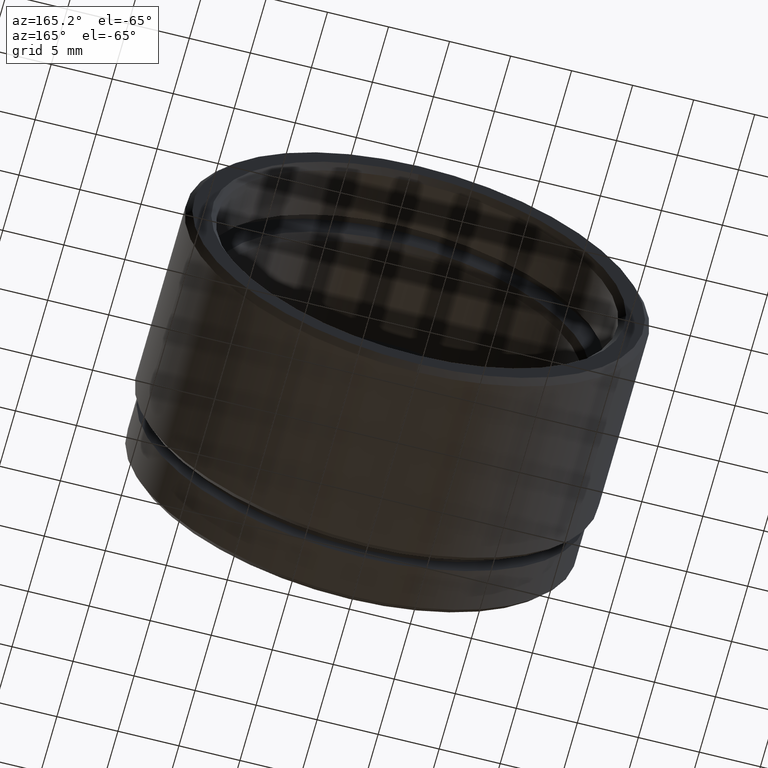
[diagram: clean part render]
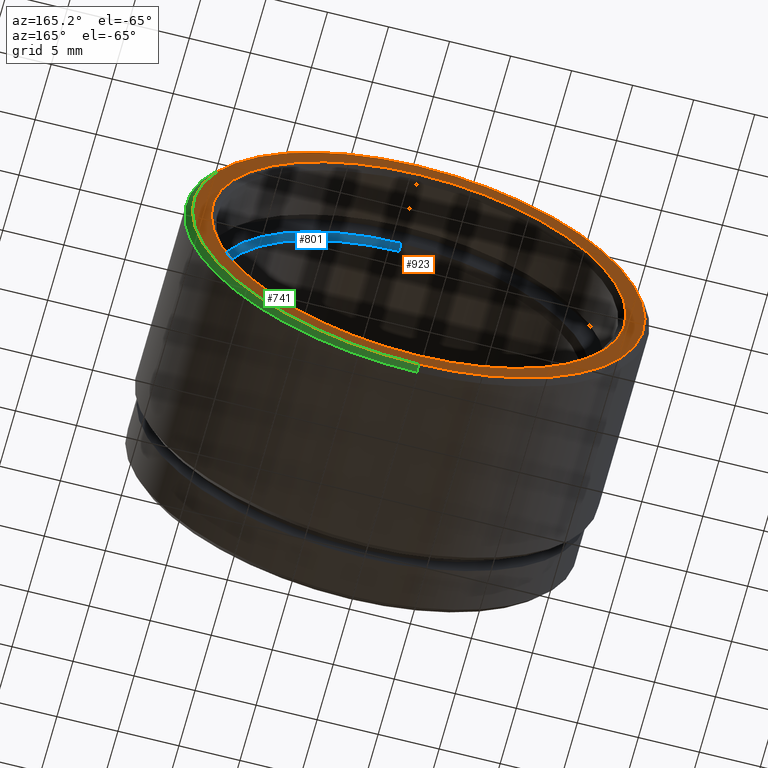
[diagram: same view with three faces highlighted in distinct colors, each labeled with its STEP entity id]
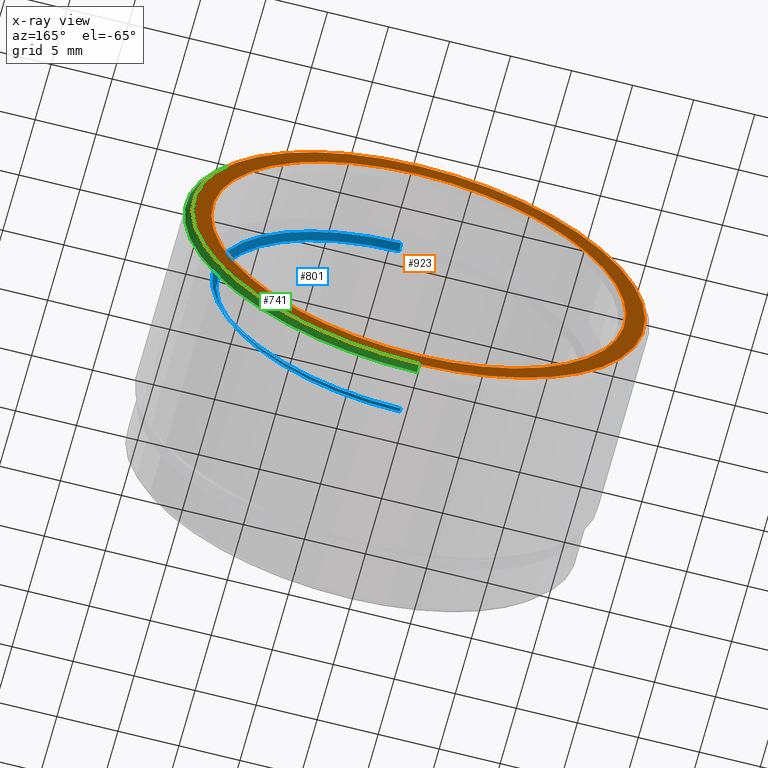
[diagram: x-ray of the same camera — body ghosted, the three highlighted faces saturated]
A machine part, auxiliary view with three faces highlighted in distinct colors.
The next image is the same camera in x-ray (body ghosted, the three faces saturated) — at least one of them is partly hidden behind the body in this view.
Their STEP definitions:

[orange] entity #923 — the highlighted planar face has unit normal (0, 1, 0).
#7 = CIRCLE ( 'NONE', #347, 16.99999999999999300 ) ;
#9 = EDGE_CURVE ( 'NONE', #88, #236, #217, .T. ) ;
#36 = VERTEX_POINT ( 'NONE', #847 ) ;
#43 = DIRECTION ( 'NONE',  ( 0.0000000000000000000, 0.0000000000000000000, -1.000000000000000000 ) ) ;
#65 = FACE_OUTER_BOUND ( 'NONE', #1017, .T. ) ;
#81 = EDGE_CURVE ( 'NONE', #36, #699, #205, .T. ) ;
#88 = VERTEX_POINT ( 'NONE', #972 ) ;
#101 = AXIS2_PLACEMENT_3D ( 'NONE', #811, #1043, #307 ) ;
#107 = DIRECTION ( 'NONE',  ( -0.0000000000000000000, -1.000000000000000000, -0.0000000000000000000 ) ) ;
#129 = CARTESIAN_POINT ( 'NONE',  ( 0.0000000000000000000, 21.50000000000000000, 0.0000000000000000000 ) ) ;
#205 = CIRCLE ( 'NONE', #827, 16.99999999999999300 ) ;
#217 = CIRCLE ( 'NONE', #850, 18.55000000000000400 ) ;
#236 = VERTEX_POINT ( 'NONE', #541 ) ;
#238 = ORIENTED_EDGE ( 'NONE', *, *, #9, .F. ) ;
#245 = CARTESIAN_POINT ( 'NONE',  ( 2.081899558550499900E-015, 21.50000000000000000, -16.99999999999999300 ) ) ;
#281 = ORIENTED_EDGE ( 'NONE', *, *, #592, .F. ) ;
#285 = AXIS2_PLACEMENT_3D ( 'NONE', #129, #107, #43 ) ;
#307 = DIRECTION ( 'NONE',  ( 0.0000000000000000000, -0.0000000000000000000, 1.000000000000000000 ) ) ;
#347 = AXIS2_PLACEMENT_3D ( 'NONE', #488, #1067, #575 ) ;
#402 = ORIENTED_EDGE ( 'NONE', *, *, #81, .T. ) ;
#488 = CARTESIAN_POINT ( 'NONE',  ( 0.0000000000000000000, 21.50000000000000000, 0.0000000000000000000 ) ) ;
#516 = ORIENTED_EDGE ( 'NONE', *, *, #1092, .T. ) ;
#541 = CARTESIAN_POINT ( 'NONE',  ( 0.0000000000000000000, 21.50000000000000000, -18.55000000000000400 ) ) ;
#557 = PLANE ( 'NONE',  #101 ) ;
#575 = DIRECTION ( 'NONE',  ( 0.0000000000000000000, 0.0000000000000000000, 1.000000000000000000 ) ) ;
#592 = EDGE_CURVE ( 'NONE', #236, #88, #899, .T. ) ;
#699 = VERTEX_POINT ( 'NONE', #245 ) ;
#773 = DIRECTION ( 'NONE',  ( -0.0000000000000000000, -1.000000000000000000, -0.0000000000000000000 ) ) ;
#811 = CARTESIAN_POINT ( 'NONE',  ( 16.50000000000000000, 21.50000000000000000, 0.0000000000000000000 ) ) ;
#817 = DIRECTION ( 'NONE',  ( 0.0000000000000000000, 0.0000000000000000000, -1.000000000000000000 ) ) ;
#827 = AXIS2_PLACEMENT_3D ( 'NONE', #966, #987, #993 ) ;
#845 = CARTESIAN_POINT ( 'NONE',  ( 0.0000000000000000000, 21.50000000000000000, 0.0000000000000000000 ) ) ;
#847 = CARTESIAN_POINT ( 'NONE',  ( 0.0000000000000000000, 21.50000000000000000, 16.99999999999999300 ) ) ;
#850 = AXIS2_PLACEMENT_3D ( 'NONE', #845, #773, #817 ) ;
#858 = FACE_BOUND ( 'NONE', #1104, .T. ) ;
#899 = CIRCLE ( 'NONE', #285, 18.55000000000000400 ) ;
#923 = ADVANCED_FACE ( 'NONE', ( #858, #65 ), #557, .T. ) ;
#966 = CARTESIAN_POINT ( 'NONE',  ( 0.0000000000000000000, 21.50000000000000000, 0.0000000000000000000 ) ) ;
#972 = CARTESIAN_POINT ( 'NONE',  ( 2.302335982397024300E-015, 21.50000000000000000, 18.55000000000000400 ) ) ;
#987 = DIRECTION ( 'NONE',  ( -0.0000000000000000000, -1.000000000000000000, -0.0000000000000000000 ) ) ;
#993 = DIRECTION ( 'NONE',  ( 0.0000000000000000000, 0.0000000000000000000, 1.000000000000000000 ) ) ;
#1017 = EDGE_LOOP ( 'NONE', ( #281, #238 ) ) ;
#1043 = DIRECTION ( 'NONE',  ( 0.0000000000000000000, 1.000000000000000000, 0.0000000000000000000 ) ) ;
#1067 = DIRECTION ( 'NONE',  ( -0.0000000000000000000, -1.000000000000000000, -0.0000000000000000000 ) ) ;
#1092 = EDGE_CURVE ( 'NONE', #699, #36, #7, .T. ) ;
#1104 = EDGE_LOOP ( 'NONE', ( #402, #516 ) ) ;

[blue] entity #801 — the highlighted conical surface has half-angle 45 deg.
#11 = EDGE_CURVE ( 'NONE', #700, #704, #191, .T. ) ;
#22 = DIRECTION ( 'NONE',  ( 0.0000000000000000000, 0.0000000000000000000, 1.000000000000000000 ) ) ;
#47 = EDGE_CURVE ( 'NONE', #518, #704, #141, .T. ) ;
#96 = CARTESIAN_POINT ( 'NONE',  ( 0.0000000000000000000, 16.00000000000000000, 15.49999999999999800 ) ) ;
#99 = CARTESIAN_POINT ( 'NONE',  ( 0.0000000000000000000, 16.00000000000000000, 0.0000000000000000000 ) ) ;
#135 = CARTESIAN_POINT ( 'NONE',  ( 0.0000000000000000000, 16.00000000000000000, 0.0000000000000000000 ) ) ;
#141 = CIRCLE ( 'NONE', #810, 15.49999999999999800 ) ;
#154 = DIRECTION ( 'NONE',  ( -0.0000000000000000000, -1.000000000000000000, -0.0000000000000000000 ) ) ;
#166 = FACE_OUTER_BOUND ( 'NONE', #980, .T. ) ;
#178 = AXIS2_PLACEMENT_3D ( 'NONE', #99, #410, #636 ) ;
#191 = LINE ( 'NONE', #303, #222 ) ;
#222 = VECTOR ( 'NONE', #237, 1000.000000000000000 ) ;
#237 = DIRECTION ( 'NONE',  ( 0.0000000000000000000, 0.7071067811865512400, 0.7071067811865439100 ) ) ;
#247 = DIRECTION ( 'NONE',  ( 0.0000000000000000000, 0.0000000000000000000, 1.000000000000000000 ) ) ;
#262 = DIRECTION ( 'NONE',  ( -0.0000000000000000000, 1.000000000000000000, -0.0000000000000000000 ) ) ;
#263 = CARTESIAN_POINT ( 'NONE',  ( 0.0000000000000000000, 15.49999999999999600, 0.0000000000000000000 ) ) ;
#272 = AXIS2_PLACEMENT_3D ( 'NONE', #263, #262, #247 ) ;
#299 = EDGE_CURVE ( 'NONE', #825, #518, #563, .T. ) ;
#303 = CARTESIAN_POINT ( 'NONE',  ( 0.0000000000000000000, 16.00000000000000000, 15.49999999999999800 ) ) ;
#410 = DIRECTION ( 'NONE',  ( -0.0000000000000000000, 1.000000000000000000, -0.0000000000000000000 ) ) ;
#518 = VERTEX_POINT ( 'NONE', #1051 ) ;
#563 = LINE ( 'NONE', #598, #613 ) ;
#570 = EDGE_CURVE ( 'NONE', #700, #825, #970, .T. ) ;
#590 = DIRECTION ( 'NONE',  ( 8.659560562354888500E-017, 0.7071067811865512400, -0.7071067811865439100 ) ) ;
#598 = CARTESIAN_POINT ( 'NONE',  ( 1.898202538678397200E-015, 16.00000000000000000, -15.49999999999999800 ) ) ;
#613 = VECTOR ( 'NONE', #590, 1000.000000000000000 ) ;
#621 = ORIENTED_EDGE ( 'NONE', *, *, #299, .F. ) ;
#636 = DIRECTION ( 'NONE',  ( 0.0000000000000000000, 0.0000000000000000000, 1.000000000000000000 ) ) ;
#640 = ORIENTED_EDGE ( 'NONE', *, *, #570, .F. ) ;
#700 = VERTEX_POINT ( 'NONE', #751 ) ;
#704 = VERTEX_POINT ( 'NONE', #96 ) ;
#751 = CARTESIAN_POINT ( 'NONE',  ( 1.836970198721029600E-015, 15.49999999999999600, 15.00000000000000000 ) ) ;
#757 = ORIENTED_EDGE ( 'NONE', *, *, #11, .T. ) ;
#770 = ORIENTED_EDGE ( 'NONE', *, *, #47, .F. ) ;
#801 = ADVANCED_FACE ( 'NONE', ( #166 ), #1024, .F. ) ;
#810 = AXIS2_PLACEMENT_3D ( 'NONE', #135, #154, #22 ) ;
#825 = VERTEX_POINT ( 'NONE', #1072 ) ;
#970 = CIRCLE ( 'NONE', #272, 15.00000000000000000 ) ;
#980 = EDGE_LOOP ( 'NONE', ( #621, #640, #757, #770 ) ) ;
#1024 = CONICAL_SURFACE ( 'NONE', #178, 15.49999999999999800, 0.7853981633974431700 ) ;
#1051 = CARTESIAN_POINT ( 'NONE',  ( 1.898202538678397200E-015, 16.00000000000000000, -15.49999999999999800 ) ) ;
#1072 = CARTESIAN_POINT ( 'NONE',  ( 0.0000000000000000000, 15.49999999999999600, -15.00000000000000000 ) ) ;

[green] entity #741 — the highlighted conical surface has half-angle 45 deg.
#26 = DIRECTION ( 'NONE',  ( 0.0000000000000000000, -0.7071067811865500200, -0.7071067811865450200 ) ) ;
#43 = DIRECTION ( 'NONE',  ( 0.0000000000000000000, 0.0000000000000000000, -1.000000000000000000 ) ) ;
#54 = CARTESIAN_POINT ( 'NONE',  ( 0.0000000000000000000, 21.00000000000000000, -19.05000000000000100 ) ) ;
#63 = VECTOR ( 'NONE', #26, 1000.000000000000000 ) ;
#68 = DIRECTION ( 'NONE',  ( 0.0000000000000000000, 0.0000000000000000000, -1.000000000000000000 ) ) ;
#88 = VERTEX_POINT ( 'NONE', #972 ) ;
#107 = DIRECTION ( 'NONE',  ( -0.0000000000000000000, -1.000000000000000000, -0.0000000000000000000 ) ) ;
#129 = CARTESIAN_POINT ( 'NONE',  ( 0.0000000000000000000, 21.50000000000000000, 0.0000000000000000000 ) ) ;
#153 = VERTEX_POINT ( 'NONE', #167 ) ;
#155 = AXIS2_PLACEMENT_3D ( 'NONE', #644, #883, #835 ) ;
#167 = CARTESIAN_POINT ( 'NONE',  ( 2.332952152375708000E-015, 21.00000000000000000, 19.05000000000000100 ) ) ;
#200 = AXIS2_PLACEMENT_3D ( 'NONE', #682, #667, #68 ) ;
#236 = VERTEX_POINT ( 'NONE', #541 ) ;
#285 = AXIS2_PLACEMENT_3D ( 'NONE', #129, #107, #43 ) ;
#309 = ORIENTED_EDGE ( 'NONE', *, *, #725, .T. ) ;
#321 = ORIENTED_EDGE ( 'NONE', *, *, #592, .T. ) ;
#324 = ORIENTED_EDGE ( 'NONE', *, *, #763, .F. ) ;
#340 = ORIENTED_EDGE ( 'NONE', *, *, #918, .F. ) ;
#441 = VERTEX_POINT ( 'NONE', #54 ) ;
#501 = LINE ( 'NONE', #663, #63 ) ;
#541 = CARTESIAN_POINT ( 'NONE',  ( 0.0000000000000000000, 21.50000000000000000, -18.55000000000000400 ) ) ;
#592 = EDGE_CURVE ( 'NONE', #236, #88, #899, .T. ) ;
#644 = CARTESIAN_POINT ( 'NONE',  ( 0.0000000000000000000, 21.00000000000000000, 0.0000000000000000000 ) ) ;
#663 = CARTESIAN_POINT ( 'NONE',  ( 0.0000000000000000000, 21.00000000000000000, -19.05000000000000100 ) ) ;
#667 = DIRECTION ( 'NONE',  ( -0.0000000000000000000, -1.000000000000000000, -0.0000000000000000000 ) ) ;
#682 = CARTESIAN_POINT ( 'NONE',  ( 0.0000000000000000000, 21.00000000000000000, 0.0000000000000000000 ) ) ;
#703 = CONICAL_SURFACE ( 'NONE', #200, 19.05000000000000100, 0.7853981633974447300 ) ;
#725 = EDGE_CURVE ( 'NONE', #88, #153, #1018, .T. ) ;
#738 = CIRCLE ( 'NONE', #155, 19.05000000000000100 ) ;
#741 = ADVANCED_FACE ( 'NONE', ( #1013 ), #703, .T. ) ;
#763 = EDGE_CURVE ( 'NONE', #441, #153, #738, .T. ) ;
#794 = EDGE_LOOP ( 'NONE', ( #321, #309, #324, #340 ) ) ;
#835 = DIRECTION ( 'NONE',  ( 0.0000000000000000000, 0.0000000000000000000, -1.000000000000000000 ) ) ;
#883 = DIRECTION ( 'NONE',  ( -0.0000000000000000000, -1.000000000000000000, -0.0000000000000000000 ) ) ;
#899 = CIRCLE ( 'NONE', #285, 18.55000000000000400 ) ;
#918 = EDGE_CURVE ( 'NONE', #236, #441, #501, .T. ) ;
#972 = CARTESIAN_POINT ( 'NONE',  ( 2.302335982397024300E-015, 21.50000000000000000, 18.55000000000000400 ) ) ;
#999 = VECTOR ( 'NONE', #1086, 1000.000000000000000 ) ;
#1005 = CARTESIAN_POINT ( 'NONE',  ( 2.332952152375708000E-015, 21.00000000000000000, 19.05000000000000100 ) ) ;
#1013 = FACE_OUTER_BOUND ( 'NONE', #794, .T. ) ;
#1018 = LINE ( 'NONE', #1005, #999 ) ;
#1086 = DIRECTION ( 'NONE',  ( 8.659560562354902000E-017, -0.7071067811865500200, 0.7071067811865450200 ) ) ;